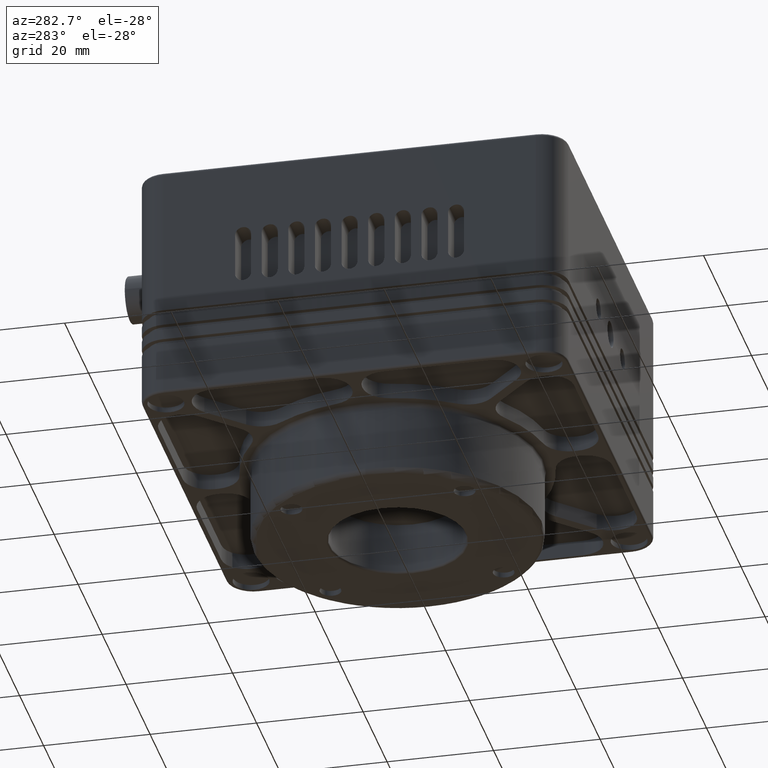
[diagram: clean part render]
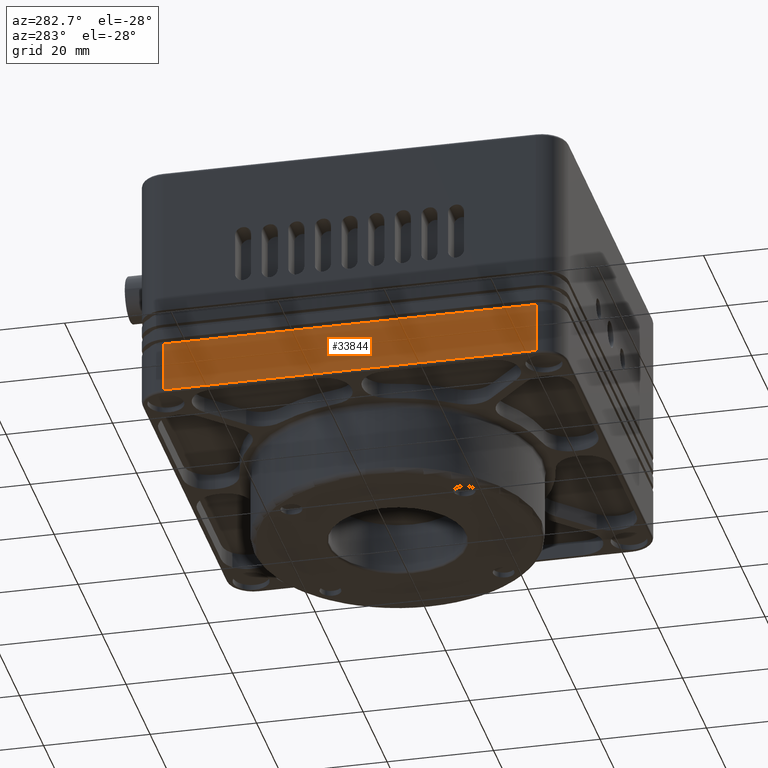
[diagram: same view with one face highlighted and labeled with its STEP entity id]
A machine part, auxiliary view. The second image highlights one B-rep face of the part: STEP entity #33844.
In plain terms, the highlighted planar face has unit normal (-1, 0, 0).
Its self-contained STEP definition (entity closure, byte-faithful):
#1998 = CARTESIAN_POINT ( 'NONE',  ( -40.00000000000000000, 35.00000000000000000, 0.000000000000000000 ) ) ;
#3282 = ORIENTED_EDGE ( 'NONE', *, *, #21074, .T. ) ;
#3713 = VECTOR ( 'NONE', #33564, 1000.000000000000000 ) ;
#5983 = CARTESIAN_POINT ( 'NONE',  ( -40.00000000000000000, -34.99999999999999289, -5.800000000000001599 ) ) ;
#6167 = CARTESIAN_POINT ( 'NONE',  ( -40.00000000000000000, 35.00000000000000000, -5.800000000000001599 ) ) ;
#6543 = CARTESIAN_POINT ( 'NONE',  ( -40.00000000000000000, -34.99999999999999289, -5.800000000000001599 ) ) ;
#6560 = LINE ( 'NONE', #16995, #37571 ) ;
#9726 = DIRECTION ( 'NONE',  ( 0.000000000000000000, 0.000000000000000000, 1.000000000000000000 ) ) ;
#12168 = LINE ( 'NONE', #1998, #40153 ) ;
#12826 = DIRECTION ( 'NONE',  ( -0.000000000000000000, -1.000000000000000000, -0.000000000000000000 ) ) ;
#15047 = VERTEX_POINT ( 'NONE', #6167 ) ;
#16995 = CARTESIAN_POINT ( 'NONE',  ( -40.00000000000000000, -34.99999999999999289, -15.30000000000000071 ) ) ;
#19629 = LINE ( 'NONE', #44656, #3713 ) ;
#21074 = EDGE_CURVE ( 'NONE', #15047, #26635, #12168, .T. ) ;
#21893 = VERTEX_POINT ( 'NONE', #27838 ) ;
#22660 = ORIENTED_EDGE ( 'NONE', *, *, #35886, .T. ) ;
#23161 = VERTEX_POINT ( 'NONE', #5983 ) ;
#24459 = EDGE_LOOP ( 'NONE', ( #3282, #34716, #22660, #34769 ) ) ;
#26635 = VERTEX_POINT ( 'NONE', #31792 ) ;
#27382 = PLANE ( 'NONE',  #38506 ) ;
#27838 = CARTESIAN_POINT ( 'NONE',  ( -40.00000000000000000, -34.99999999999999289, -15.30000000000000071 ) ) ;
#27902 = LINE ( 'NONE', #6543, #42179 ) ;
#28974 = EDGE_CURVE ( 'NONE', #26635, #21893, #6560, .T. ) ;
#29540 = DIRECTION ( 'NONE',  ( -1.000000000000000000, 0.000000000000000000, 0.000000000000000000 ) ) ;
#30284 = DIRECTION ( 'NONE',  ( 0.000000000000000000, 0.000000000000000000, -1.000000000000000000 ) ) ;
#30911 = DIRECTION ( 'NONE',  ( 0.000000000000000000, 1.000000000000000000, 0.000000000000000000 ) ) ;
#31792 = CARTESIAN_POINT ( 'NONE',  ( -40.00000000000000000, 35.00000000000000000, -15.30000000000000071 ) ) ;
#33564 = DIRECTION ( 'NONE',  ( -0.000000000000000000, -0.000000000000000000, 1.000000000000000000 ) ) ;
#33844 = ADVANCED_FACE ( 'NONE', ( #44976 ), #27382, .T. ) ;
#34716 = ORIENTED_EDGE ( 'NONE', *, *, #28974, .T. ) ;
#34769 = ORIENTED_EDGE ( 'NONE', *, *, #35106, .T. ) ;
#35106 = EDGE_CURVE ( 'NONE', #23161, #15047, #27902, .T. ) ;
#35886 = EDGE_CURVE ( 'NONE', #21893, #23161, #19629, .T. ) ;
#37571 = VECTOR ( 'NONE', #12826, 1000.000000000000000 ) ;
#38506 = AXIS2_PLACEMENT_3D ( 'NONE', #41503, #29540, #9726 ) ;
#40153 = VECTOR ( 'NONE', #30284, 1000.000000000000000 ) ;
#41503 = CARTESIAN_POINT ( 'NONE',  ( -40.00000000000000000, 55.00000000000000000, 0.000000000000000000 ) ) ;
#42179 = VECTOR ( 'NONE', #30911, 1000.000000000000000 ) ;
#44656 = CARTESIAN_POINT ( 'NONE',  ( -40.00000000000000000, -34.99999999999999289, 0.000000000000000000 ) ) ;
#44976 = FACE_OUTER_BOUND ( 'NONE', #24459, .T. ) ;